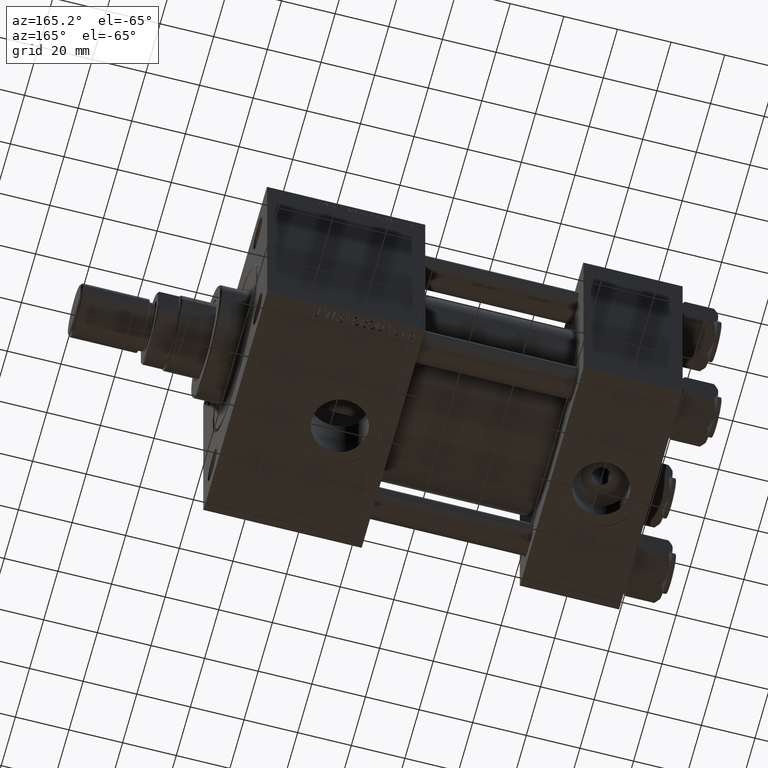
[diagram: clean part render]
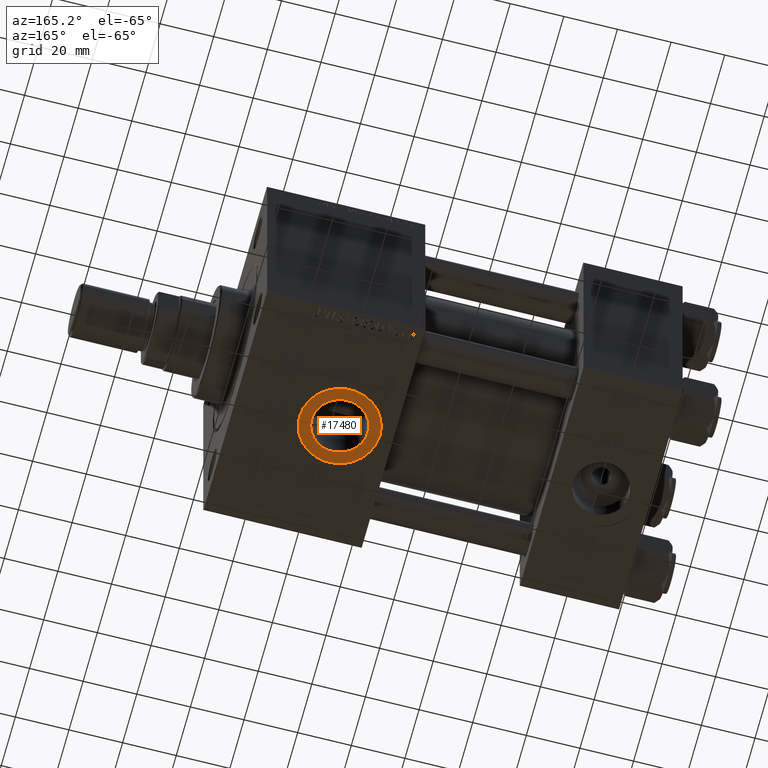
[diagram: same view with one face highlighted and labeled with its STEP entity id]
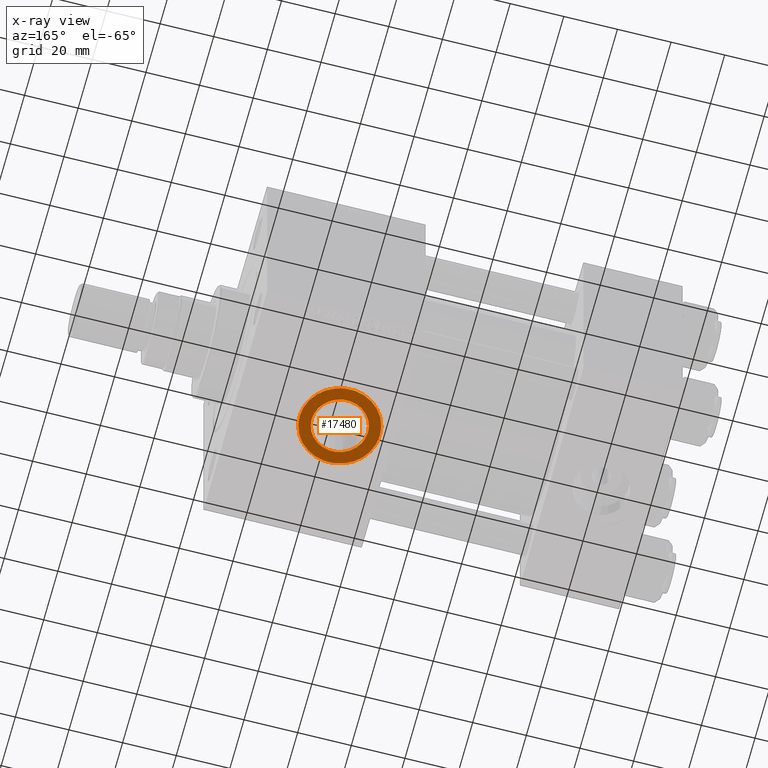
[diagram: x-ray of the same camera — body ghosted, the highlighted face saturated]
A machine part, auxiliary view. The second image highlights one B-rep face of the part: STEP entity #17480.
The next image is the same camera in x-ray: the body ghosted, the highlighted face saturated — about 0% of this face is hidden behind the body in this view.
In plain terms, the highlighted planar face has unit normal (0, 0, -1).
Its self-contained STEP definition (entity closure, byte-faithful):
#414 = CARTESIAN_POINT ( 'NONE',  ( 126.4800000000000040, 1.283429845506425883E-15, -44.79999999999999716 ) ) ;
#1137 = AXIS2_PLACEMENT_3D ( 'NONE', #41791, #49974, #6674 ) ;
#1950 = CARTESIAN_POINT ( 'NONE',  ( 105.5199999999999960, 0.000000000000000000, -44.79999999999999716 ) ) ;
#2775 = CIRCLE ( 'NONE', #43722, 15.00000000000000000 ) ;
#4324 = CARTESIAN_POINT ( 'NONE',  ( 116.0000000000000000, 0.000000000000000000, -44.79999999999999716 ) ) ;
#5422 = CARTESIAN_POINT ( 'NONE',  ( 116.0000000000000000, 0.000000000000000000, -44.79999999999999716 ) ) ;
#5699 = CIRCLE ( 'NONE', #19590, 15.00000000000000000 ) ;
#6674 = DIRECTION ( 'NONE',  ( -1.000000000000000000, 0.000000000000000000, 0.000000000000000000 ) ) ;
#8207 = DIRECTION ( 'NONE',  ( -1.000000000000000000, 0.000000000000000000, 0.000000000000000000 ) ) ;
#8805 = ORIENTED_EDGE ( 'NONE', *, *, #13308, .F. ) ;
#9010 = DIRECTION ( 'NONE',  ( -1.000000000000000000, 0.000000000000000000, -0.000000000000000000 ) ) ;
#9269 = PLANE ( 'NONE',  #27262 ) ;
#12317 = CARTESIAN_POINT ( 'NONE',  ( 116.0000000000000000, 0.000000000000000000, -44.79999999999999716 ) ) ;
#13308 = EDGE_CURVE ( 'NONE', #50548, #44330, #30540, .T. ) ;
#13400 = EDGE_CURVE ( 'NONE', #44330, #50548, #23208, .T. ) ;
#14865 = CARTESIAN_POINT ( 'NONE',  ( 116.0000000000000000, 0.000000000000000000, -44.79999999999999716 ) ) ;
#15383 = EDGE_CURVE ( 'NONE', #23822, #33763, #2775, .T. ) ;
#15570 = ORIENTED_EDGE ( 'NONE', *, *, #13400, .F. ) ;
#16542 = CARTESIAN_POINT ( 'NONE',  ( 101.0000000000000000, 0.000000000000000000, -44.79999999999999716 ) ) ;
#17480 = ADVANCED_FACE ( 'NONE', ( #44878, #44120 ), #9269, .T. ) ;
#19590 = AXIS2_PLACEMENT_3D ( 'NONE', #4324, #19955, #36100 ) ;
#19955 = DIRECTION ( 'NONE',  ( 0.000000000000000000, 0.000000000000000000, -1.000000000000000000 ) ) ;
#20336 = EDGE_LOOP ( 'NONE', ( #15570, #8805 ) ) ;
#23208 = CIRCLE ( 'NONE', #1137, 10.48000000000000398 ) ;
#23822 = VERTEX_POINT ( 'NONE', #16542 ) ;
#27262 = AXIS2_PLACEMENT_3D ( 'NONE', #5422, #36685, #9010 ) ;
#28768 = EDGE_LOOP ( 'NONE', ( #48278, #47776 ) ) ;
#30475 = EDGE_CURVE ( 'NONE', #33763, #23822, #5699, .T. ) ;
#30493 = DIRECTION ( 'NONE',  ( -1.000000000000000000, 0.000000000000000000, 0.000000000000000000 ) ) ;
#30540 = CIRCLE ( 'NONE', #34678, 10.48000000000000398 ) ;
#33763 = VERTEX_POINT ( 'NONE', #42966 ) ;
#34678 = AXIS2_PLACEMENT_3D ( 'NONE', #14865, #37709, #30493 ) ;
#35895 = DIRECTION ( 'NONE',  ( 0.000000000000000000, 0.000000000000000000, -1.000000000000000000 ) ) ;
#36100 = DIRECTION ( 'NONE',  ( -1.000000000000000000, 0.000000000000000000, 0.000000000000000000 ) ) ;
#36685 = DIRECTION ( 'NONE',  ( 0.000000000000000000, 0.000000000000000000, -1.000000000000000000 ) ) ;
#37709 = DIRECTION ( 'NONE',  ( 0.000000000000000000, 0.000000000000000000, -1.000000000000000000 ) ) ;
#41791 = CARTESIAN_POINT ( 'NONE',  ( 116.0000000000000000, 0.000000000000000000, -44.79999999999999716 ) ) ;
#42966 = CARTESIAN_POINT ( 'NONE',  ( 131.0000000000000000, 1.836970198721029589E-15, -44.79999999999999716 ) ) ;
#43722 = AXIS2_PLACEMENT_3D ( 'NONE', #12317, #35895, #8207 ) ;
#44120 = FACE_OUTER_BOUND ( 'NONE', #28768, .T. ) ;
#44330 = VERTEX_POINT ( 'NONE', #1950 ) ;
#44878 = FACE_BOUND ( 'NONE', #20336, .T. ) ;
#47776 = ORIENTED_EDGE ( 'NONE', *, *, #30475, .T. ) ;
#48278 = ORIENTED_EDGE ( 'NONE', *, *, #15383, .T. ) ;
#49974 = DIRECTION ( 'NONE',  ( 0.000000000000000000, 0.000000000000000000, -1.000000000000000000 ) ) ;
#50548 = VERTEX_POINT ( 'NONE', #414 ) ;